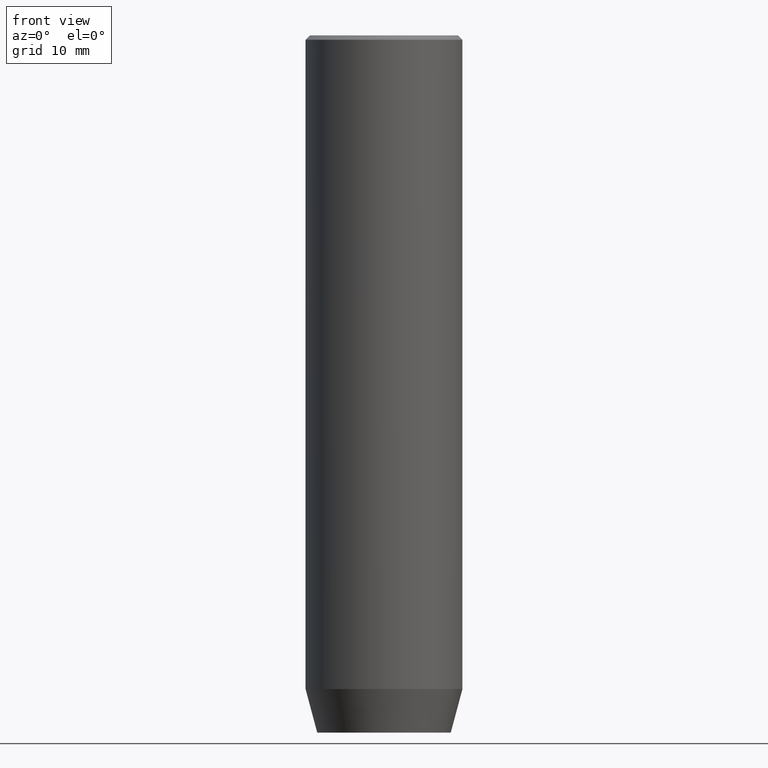
[diagram: clean part render]
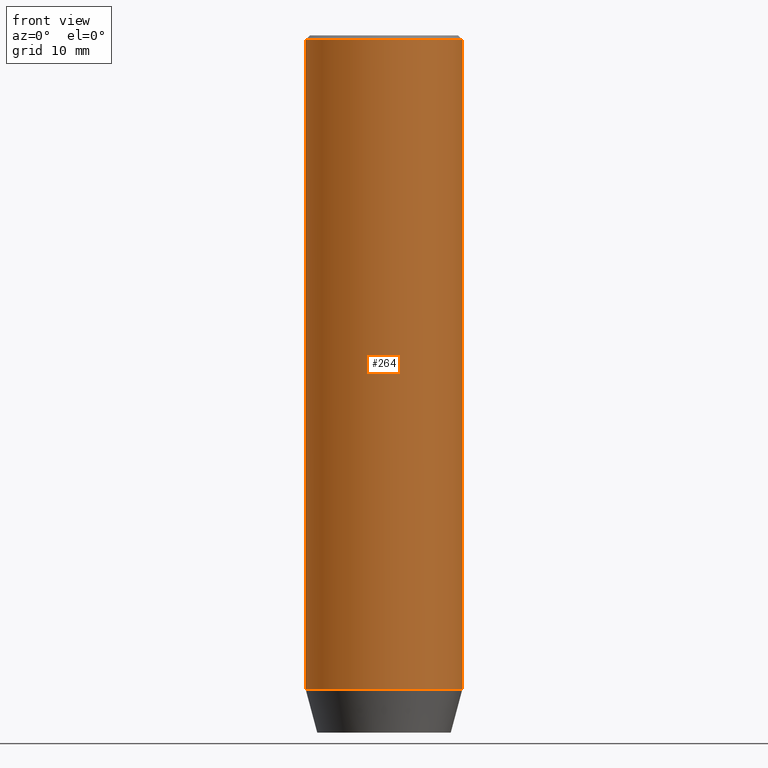
[diagram: same view with one face highlighted and labeled with its STEP entity id]
A machine part, front view. The second image highlights one B-rep face of the part: STEP entity #264.
In plain terms, the highlighted cylindrical surface (partial cylindrical patch) has radius 9 mm, axis along (-0, -0, 1).
Its self-contained STEP definition (entity closure, byte-faithful):
#33 = CARTESIAN_POINT ( 'NONE',  ( -9.000000000000000000, 1.102182119232617714E-15, 0.000000000000000000 ) ) ;
#36 = AXIS2_PLACEMENT_3D ( 'NONE', #385, #199, #470 ) ;
#39 = CARTESIAN_POINT ( 'NONE',  ( 0.000000000000000000, 0.000000000000000000, 0.000000000000000000 ) ) ;
#43 = CIRCLE ( 'NONE', #524, 9.000000000000000000 ) ;
#54 = EDGE_LOOP ( 'NONE', ( #278, #245, #442, #243 ) ) ;
#84 = FACE_OUTER_BOUND ( 'NONE', #54, .T. ) ;
#90 = VECTOR ( 'NONE', #138, 1000.000000000000000 ) ;
#97 = CIRCLE ( 'NONE', #36, 9.000000000000000000 ) ;
#112 = VERTEX_POINT ( 'NONE', #553 ) ;
#124 = DIRECTION ( 'NONE',  ( -0.000000000000000000, -0.000000000000000000, 1.000000000000000000 ) ) ;
#138 = DIRECTION ( 'NONE',  ( -0.000000000000000000, -0.000000000000000000, 1.000000000000000000 ) ) ;
#158 = EDGE_CURVE ( 'NONE', #370, #447, #43, .T. ) ;
#177 = CARTESIAN_POINT ( 'NONE',  ( -9.000000000000000000, 1.102182119232617714E-15, -75.00000000000001421 ) ) ;
#199 = DIRECTION ( 'NONE',  ( -0.000000000000000000, -0.000000000000000000, 1.000000000000000000 ) ) ;
#214 = EDGE_CURVE ( 'NONE', #112, #370, #366, .T. ) ;
#239 = AXIS2_PLACEMENT_3D ( 'NONE', #39, #124, #299 ) ;
#243 = ORIENTED_EDGE ( 'NONE', *, *, #158, .T. ) ;
#245 = ORIENTED_EDGE ( 'NONE', *, *, #551, .T. ) ;
#264 = ADVANCED_FACE ( 'NONE', ( #84 ), #532, .T. ) ;
#270 = DIRECTION ( 'NONE',  ( 1.000000000000000000, 0.000000000000000000, 0.000000000000000000 ) ) ;
#275 = CARTESIAN_POINT ( 'NONE',  ( -9.000000000000000000, 1.102182119232617714E-15, -0.5000000000000160982 ) ) ;
#278 = ORIENTED_EDGE ( 'NONE', *, *, #342, .F. ) ;
#299 = DIRECTION ( 'NONE',  ( 1.000000000000000000, 0.000000000000000000, 0.000000000000000000 ) ) ;
#315 = VECTOR ( 'NONE', #578, 1000.000000000000000 ) ;
#342 = EDGE_CURVE ( 'NONE', #394, #447, #391, .T. ) ;
#363 = CARTESIAN_POINT ( 'NONE',  ( 0.000000000000000000, 0.000000000000000000, -0.5000000000000160982 ) ) ;
#366 = LINE ( 'NONE', #550, #90 ) ;
#370 = VERTEX_POINT ( 'NONE', #568 ) ;
#385 = CARTESIAN_POINT ( 'NONE',  ( 0.000000000000000000, 0.000000000000000000, -75.00000000000001421 ) ) ;
#391 = LINE ( 'NONE', #33, #315 ) ;
#394 = VERTEX_POINT ( 'NONE', #177 ) ;
#442 = ORIENTED_EDGE ( 'NONE', *, *, #214, .T. ) ;
#447 = VERTEX_POINT ( 'NONE', #275 ) ;
#470 = DIRECTION ( 'NONE',  ( 1.000000000000000000, 0.000000000000000000, 0.000000000000000000 ) ) ;
#524 = AXIS2_PLACEMENT_3D ( 'NONE', #363, #547, #270 ) ;
#532 = CYLINDRICAL_SURFACE ( 'NONE', #239, 9.000000000000000000 ) ;
#547 = DIRECTION ( 'NONE',  ( 0.000000000000000000, 0.000000000000000000, -1.000000000000000000 ) ) ;
#550 = CARTESIAN_POINT ( 'NONE',  ( 9.000000000000000000, 0.000000000000000000, 0.000000000000000000 ) ) ;
#551 = EDGE_CURVE ( 'NONE', #394, #112, #97, .T. ) ;
#553 = CARTESIAN_POINT ( 'NONE',  ( 9.000000000000000000, 0.000000000000000000, -75.00000000000001421 ) ) ;
#568 = CARTESIAN_POINT ( 'NONE',  ( 9.000000000000000000, 0.000000000000000000, -0.5000000000000160982 ) ) ;
#578 = DIRECTION ( 'NONE',  ( -0.000000000000000000, -0.000000000000000000, 1.000000000000000000 ) ) ;